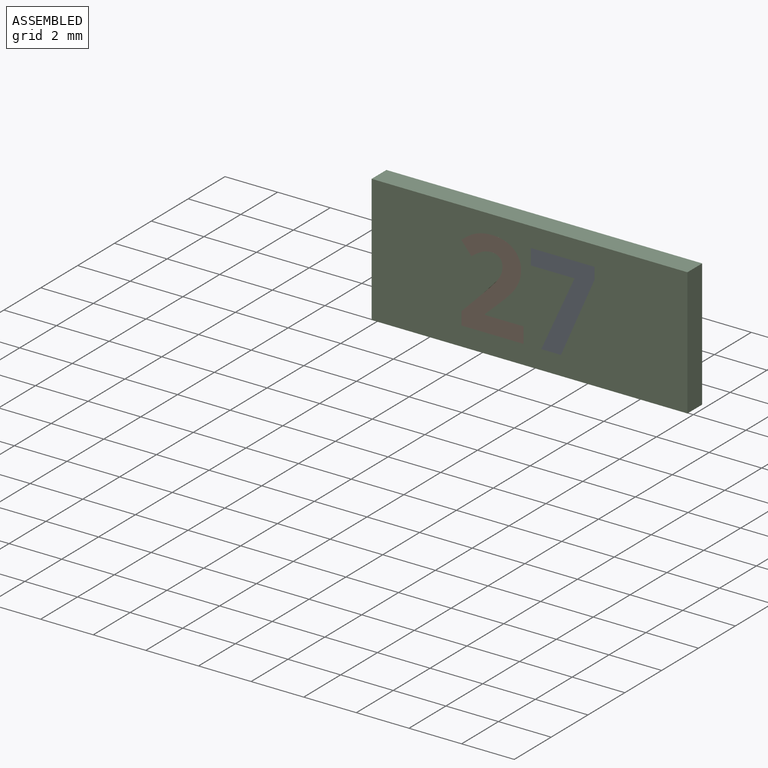
[diagram: assembled view]
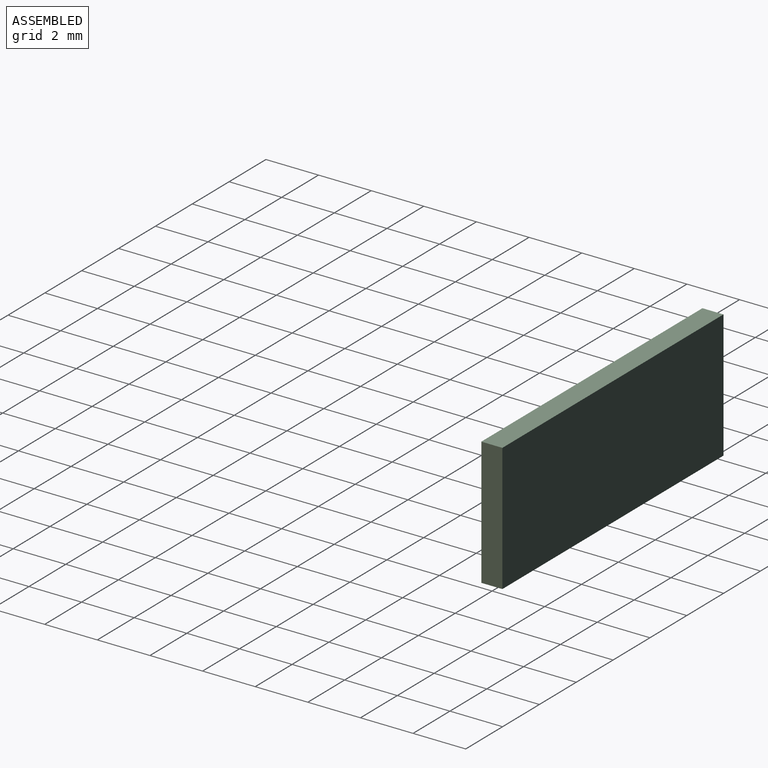
[diagram: assembled view, second angle]
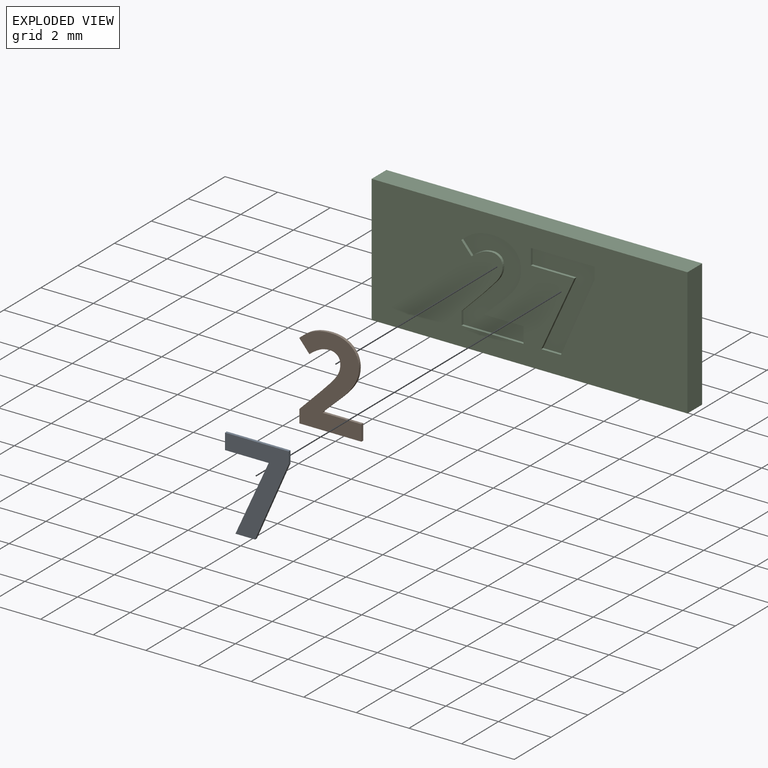
[diagram: exploded view]
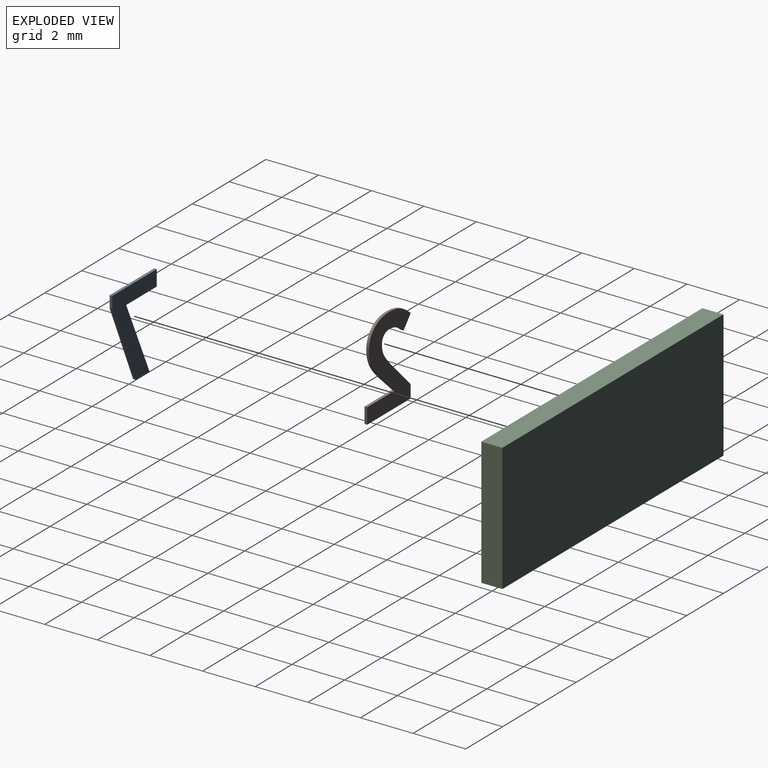
[diagram: exploded view, second angle]
ASSEMBLY  parts=3 mates=2
PART A: 9 faces, bbox 2.4x0.1x3.4 mm
  f0: plane 3.37x2.42mm, normal (0,-1,0), area 3.4mm2, adj f1,f2,f3,f4,f6,f7,f8
  f1: plane 2.92x1.28mm, normal (0.92,0,-0.4), area 0.3mm2, adj f0,f2,f5,f7
  f2: plane 0.45x0.1mm, normal (1,0,0), area 0mm2, adj f0,f1,f3,f5
  f3: plane 2.42x0.1mm, normal (0,0,1), area 0.2mm2, adj f0,f2,f4,f5
  f4: plane 0.6x0.1mm, normal (-1,0,0), area 0.1mm2, adj f0,f3,f5,f6
  f5: plane 3.37x2.42mm, normal (0,1,0), area 3.4mm2, adj f1,f2,f3,f4,f6,f7,f8
  f6: plane 1.66x0.1mm, normal (0,0,-1), area 0.2mm2, adj f0,f4,f5,f8
  f7: plane 0.75x0.1mm, normal (0,0,-1), area 0.1mm2, adj f0,f1,f5,f8
  f8: plane 2.77x1.27mm, normal (-0.91,0,0.42), area 0.3mm2, adj f0,f5,f6,f7
PART B: 26 faces, bbox 2.4x0.1x3.4 mm
  f0: plane 3.42x2.37mm, normal (0,-1,0), area 4.2mm2, adj f1,f2,f3,f4,f5,f6,f7,f8
  f1: plane 1.47x0.1mm, normal (0,0,1), area 0.1mm2, adj f0,f2,f22,f24
  f2: plane 0.1x0.03mm, normal (1,0,0), area 0mm2, adj f0,f1,f3,f22
  f3: plane 0.43x0.41mm, normal (0.69,0,-0.73), area 0.1mm2, adj f0,f2,f4,f22
  f4: extruded ~0.61x0.61mm, area 0.1mm2, adj f0,f3,f5,f22
  f5: extruded ~0.42x0.25mm, area 0mm2, adj f0,f4,f6,f22
  f6: extruded ~0.44x0.1mm, area 0mm2, adj f0,f5,f7,f22
  f7: extruded ~0.48x0.13mm, area 0.1mm2, adj f0,f6,f8,f22
  f8: extruded ~0.38x0.32mm, area 0.1mm2, adj f0,f7,f9,f22
  f9: extruded ~0.56x0.12mm, area 0.1mm2, adj f0,f8,f10,f22
  f10: extruded ~0.43x0.1mm, area 0mm2, adj f0,f9,f11,f22
  f11: extruded ~0.36x0.13mm, area 0mm2, adj f0,f10,f12,f22
  f12: extruded ~0.41x0.3mm, area 0.1mm2, adj f0,f11,f13,f22
  f13: plane 0.46x0.39mm, normal (-0.76,0,-0.65), area 0.1mm2, adj f0,f12,f14,f22
  f14: extruded ~0.39x0.26mm, area 0mm2, adj f0,f13,f15,f22
  f15: extruded ~0.38x0.1mm, area 0mm2, adj f0,f14,f16,f22
  f16: extruded ~0.3x0.1mm, area 0mm2, adj f0,f15,f17,f22
  f17: extruded ~0.3x0.11mm, area 0mm2, adj f0,f16,f18,f22
  f18: extruded ~0.26x0.1mm, area 0mm2, adj f0,f17,f19,f22
  f19: extruded ~0.28x0.17mm, area 0mm2, adj f0,f18,f20,f22
  f20: extruded ~0.53x0.49mm, area 0.1mm2, adj f0,f19,f21,f22
  f21: plane 0.86x0.85mm, normal (-0.71,0,0.7), area 0.1mm2, adj f0,f20,f22,f23
  f22: plane 3.42x2.37mm, normal (0,1,0), area 4.2mm2, adj f1,f2,f3,f4,f5,f6,f7,f8
  f23: plane 0.5x0.1mm, normal (-1,0,0), area 0mm2, adj f0,f21,f22,f25
  f24: plane 0.6x0.1mm, normal (1,0,0), area 0.1mm2, adj f0,f1,f22,f25
  f25: plane 2.36x0.1mm, normal (0,0,-1), area 0.2mm2, adj f0,f22,f23,f24
PART C: 39 faces, bbox 12x0.8x4.9 mm
  f0: plane 12x4.85mm, normal (0,-1,0), area 50.5mm2, adj f1,f2,f3,f4,f6,f7,f8,f9
  f1: plane 12x0.8mm, normal (0,0,-1), area 9.6mm2, adj f0,f2,f4,f5
  f2: plane 4.85x0.8mm, normal (1,0,0), area 3.9mm2, adj f0,f1,f3,f5
  f3: plane 12x0.8mm, normal (0,0,1), area 9.6mm2, adj f0,f2,f4,f5
  f4: plane 4.85x0.8mm, normal (-1,0,0), area 3.9mm2, adj f0,f1,f3,f5
  f5: plane 12x4.85mm, normal (0,1,0), area 58.2mm2, adj f1,f2,f3,f4
  f6: plane 0.75x0.1mm, normal (0,0,1), area 0.1mm2, adj f0,f7,f12,f13
  f7: plane 2.92x1.28mm, normal (-0.92,0,0.4), area 0.3mm2, adj f0,f6,f8,f13
  f8: plane 0.45x0.1mm, normal (-1,0,0), area 0mm2, adj f0,f7,f9,f13
  f9: plane 2.42x0.1mm, normal (0,0,-1), area 0.2mm2, adj f0,f8,f10,f13
  f10: plane 0.6x0.1mm, normal (1,0,0), area 0.1mm2, adj f0,f9,f11,f13
  f11: plane 1.66x0.1mm, normal (0,0,1), area 0.2mm2, adj f0,f10,f12,f13
  f12: plane 2.77x1.27mm, normal (0.91,0,-0.42), area 0.3mm2, adj f0,f6,f11,f13
  f13: plane 3.37x2.42mm, normal (0,-1,0), area 3.4mm2, adj f6,f7,f8,f9,f10,f11,f12
  f14: plane 0.6x0.1mm, normal (-1,0,0), area 0.1mm2, adj f0,f15,f37,f38
  f15: plane 1.47x0.1mm, normal (0,0,-1), area 0.1mm2, adj f0,f14,f16,f38
  f16: plane 0.1x0.03mm, normal (-1,0,0), area 0mm2, adj f0,f15,f17,f38
  f17: plane 0.43x0.41mm, normal (-0.69,0,0.73), area 0.1mm2, adj f0,f16,f18,f38
  f18: extruded ~0.61x0.61mm, area 0.1mm2, adj f0,f17,f19,f38
  f19: extruded ~0.42x0.25mm, area 0mm2, adj f0,f18,f20,f38
  f20: extruded ~0.44x0.1mm, area 0mm2, adj f0,f19,f21,f38
  f21: extruded ~0.48x0.13mm, area 0.1mm2, adj f0,f20,f22,f38
  f22: extruded ~0.38x0.32mm, area 0.1mm2, adj f0,f21,f23,f38
  f23: extruded ~0.56x0.12mm, area 0.1mm2, adj f0,f22,f24,f38
  f24: extruded ~0.43x0.1mm, area 0mm2, adj f0,f23,f25,f38
  f25: extruded ~0.36x0.13mm, area 0mm2, adj f0,f24,f26,f38
  f26: extruded ~0.41x0.3mm, area 0.1mm2, adj f0,f25,f27,f38
  f27: plane 0.46x0.39mm, normal (0.76,0,0.65), area 0.1mm2, adj f0,f26,f28,f38
  f28: extruded ~0.39x0.26mm, area 0mm2, adj f0,f27,f29,f38
  f29: extruded ~0.38x0.1mm, area 0mm2, adj f0,f28,f30,f38
  f30: extruded ~0.3x0.1mm, area 0mm2, adj f0,f29,f31,f38
  f31: extruded ~0.3x0.11mm, area 0mm2, adj f0,f30,f32,f38
  f32: extruded ~0.26x0.1mm, area 0mm2, adj f0,f31,f33,f38
  f33: extruded ~0.28x0.17mm, area 0mm2, adj f0,f32,f34,f38
  f34: extruded ~0.53x0.49mm, area 0.1mm2, adj f0,f33,f35,f38
  f35: plane 0.86x0.85mm, normal (0.71,0,-0.7), area 0.1mm2, adj f0,f34,f36,f38
  f36: plane 0.5x0.1mm, normal (1,0,0), area 0mm2, adj f0,f35,f37,f38
  f37: plane 2.36x0.1mm, normal (0,0,1), area 0.2mm2, adj f0,f14,f36,f38
  f38: plane 3.42x2.37mm, normal (0,-1,0), area 4.2mm2, adj f14,f15,f16,f17,f18,f19,f20,f21
PLACE A t=(-0.18,0.42,0)mm
PLACE B t=(-2.87,0.42,0)mm
PLACE C t=(0.04,0.42,0)mm
MATE fastened B.f0 <-> C.f0  axis (0,-1,0) through (-2.54,-0.38,-1.7)mm
MATE fastened A.f0 <-> C.f0  axis (0,-1,0) through (0.49,-0.38,-1.7)mm
